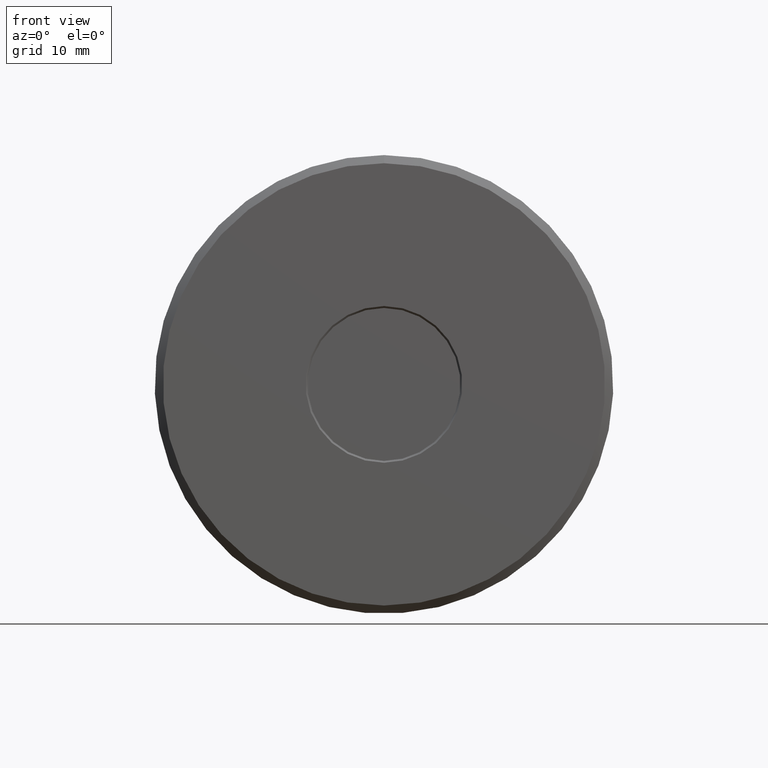
[diagram: clean part render]
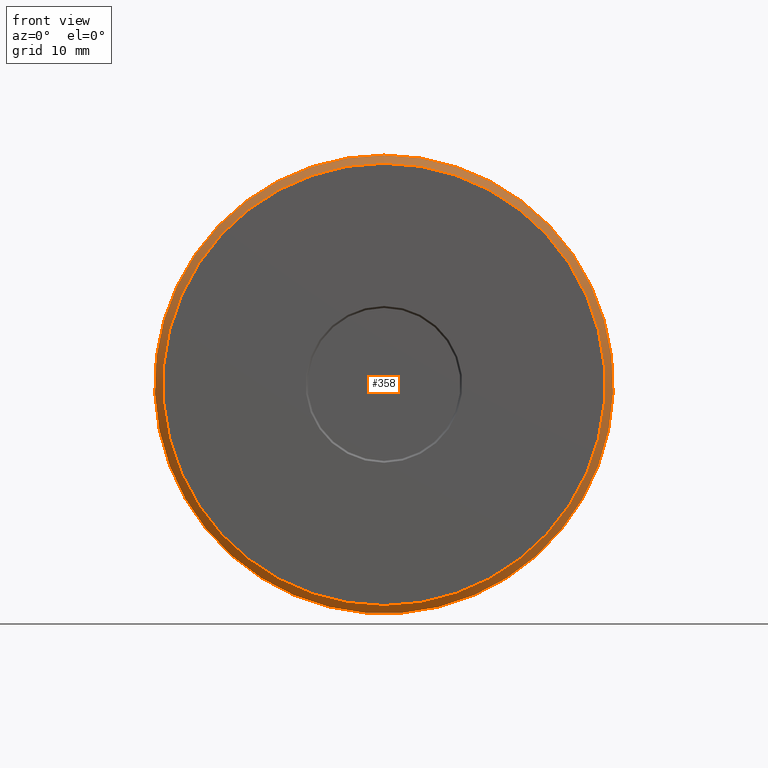
[diagram: same view with one face highlighted and labeled with its STEP entity id]
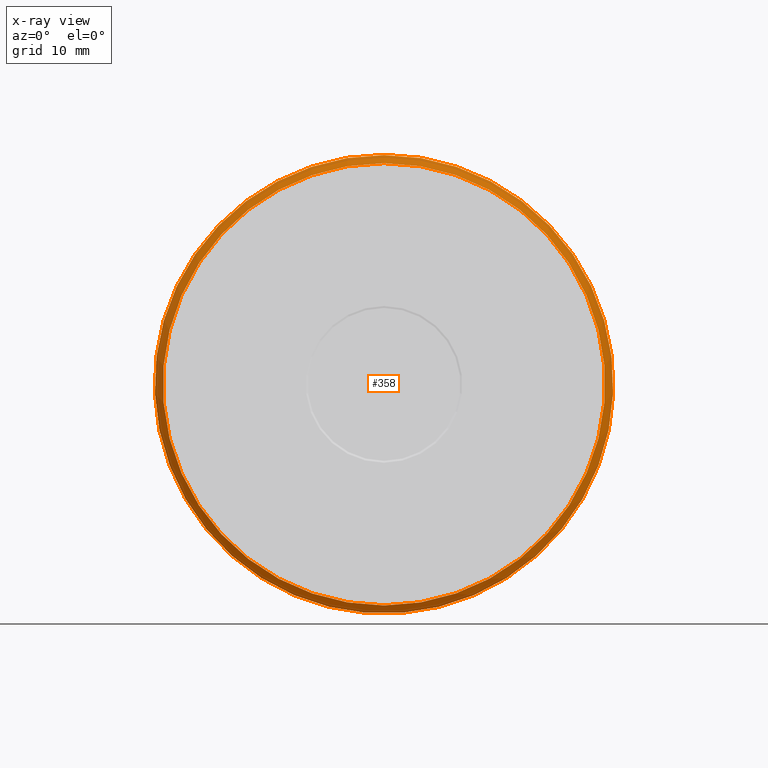
[diagram: x-ray of the same camera — body ghosted, the highlighted face saturated]
A machine part, front view. The second image highlights one B-rep face of the part: STEP entity #358.
The next image is the same camera in x-ray: the body ghosted, the highlighted face saturated — about 0% of this face is hidden behind the body in this view.
In plain terms, the highlighted conical surface has half-angle 45 deg.
Its self-contained STEP definition (entity closure, byte-faithful):
#13 = DIRECTION ( 'NONE',  ( 0.0000000000000000000, 0.0000000000000000000, 1.000000000000000000 ) ) ;
#18 = DIRECTION ( 'NONE',  ( -0.0000000000000000000, 1.000000000000000000, -0.0000000000000000000 ) ) ;
#43 = ORIENTED_EDGE ( 'NONE', *, *, #340, .T. ) ;
#166 = CARTESIAN_POINT ( 'NONE',  ( 0.0000000000000000000, 0.03000000000000013800, 0.0000000000000000000 ) ) ;
#222 = EDGE_LOOP ( 'NONE', ( #43 ) ) ;
#238 = CIRCLE ( 'NONE', #528, 0.8437500000000000000 ) ;
#248 = VERTEX_POINT ( 'NONE', #285 ) ;
#257 = CONICAL_SURFACE ( 'NONE', #419, 0.8437500000000000000, 0.7853981633974437300 ) ;
#271 = DIRECTION ( 'NONE',  ( 0.0000000000000000000, 0.0000000000000000000, 1.000000000000000000 ) ) ;
#285 = CARTESIAN_POINT ( 'NONE',  ( 0.0000000000000000000, 0.03000000000000013800, 0.8437500000000000000 ) ) ;
#287 = DIRECTION ( 'NONE',  ( 0.0000000000000000000, 0.0000000000000000000, 1.000000000000000000 ) ) ;
#291 = DIRECTION ( 'NONE',  ( -0.0000000000000000000, 1.000000000000000000, -0.0000000000000000000 ) ) ;
#336 = ORIENTED_EDGE ( 'NONE', *, *, #414, .F. ) ;
#340 = EDGE_CURVE ( 'NONE', #532, #532, #483, .T. ) ;
#358 = ADVANCED_FACE ( 'NONE', ( #392, #375 ), #257, .T. ) ;
#375 = FACE_OUTER_BOUND ( 'NONE', #503, .T. ) ;
#377 = AXIS2_PLACEMENT_3D ( 'NONE', #396, #291, #287 ) ;
#392 = FACE_BOUND ( 'NONE', #222, .T. ) ;
#396 = CARTESIAN_POINT ( 'NONE',  ( 0.0000000000000000000, -9.302429229667903700E-017, 0.0000000000000000000 ) ) ;
#414 = EDGE_CURVE ( 'NONE', #248, #248, #238, .T. ) ;
#419 = AXIS2_PLACEMENT_3D ( 'NONE', #445, #440, #271 ) ;
#440 = DIRECTION ( 'NONE',  ( -0.0000000000000000000, 1.000000000000000000, -0.0000000000000000000 ) ) ;
#445 = CARTESIAN_POINT ( 'NONE',  ( 0.0000000000000000000, 0.03000000000000013800, 0.0000000000000000000 ) ) ;
#483 = CIRCLE ( 'NONE', #377, 0.8137499999999999700 ) ;
#503 = EDGE_LOOP ( 'NONE', ( #336 ) ) ;
#528 = AXIS2_PLACEMENT_3D ( 'NONE', #166, #18, #13 ) ;
#531 = CARTESIAN_POINT ( 'NONE',  ( 0.0000000000000000000, -9.302429229667903700E-017, 0.8137499999999999700 ) ) ;
#532 = VERTEX_POINT ( 'NONE', #531 ) ;